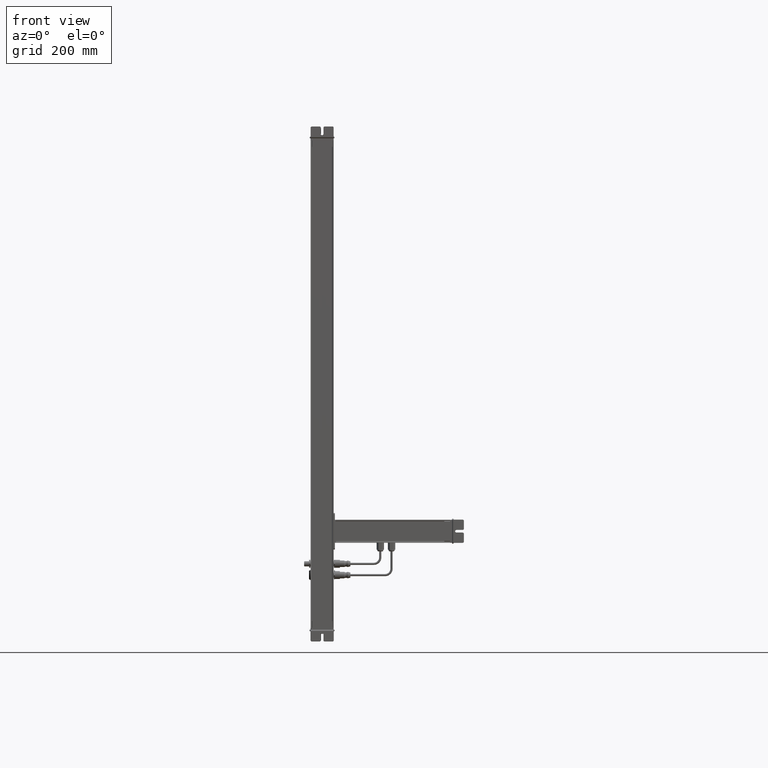
[diagram: clean part render]
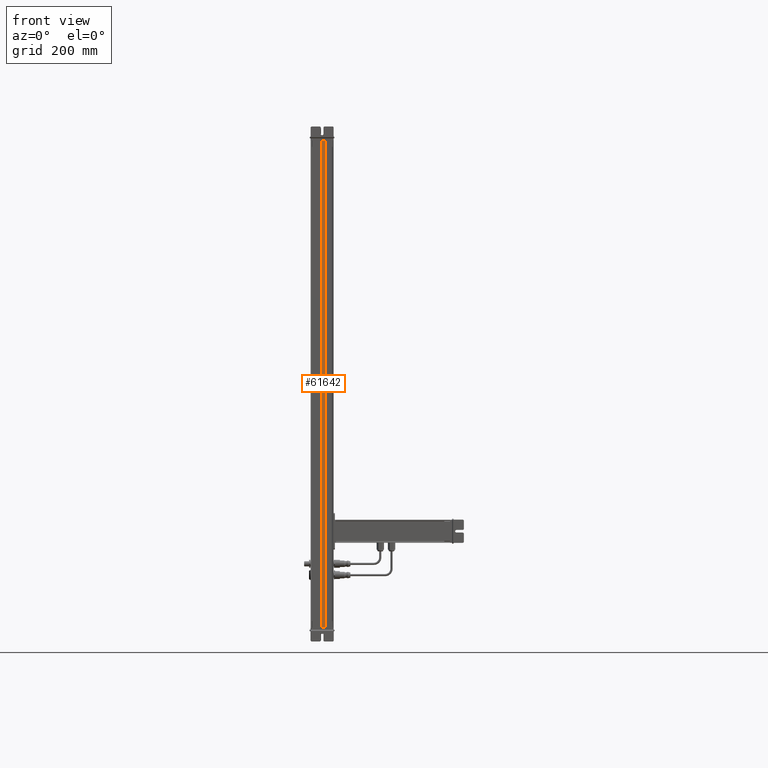
[diagram: same view with one face highlighted and labeled with its STEP entity id]
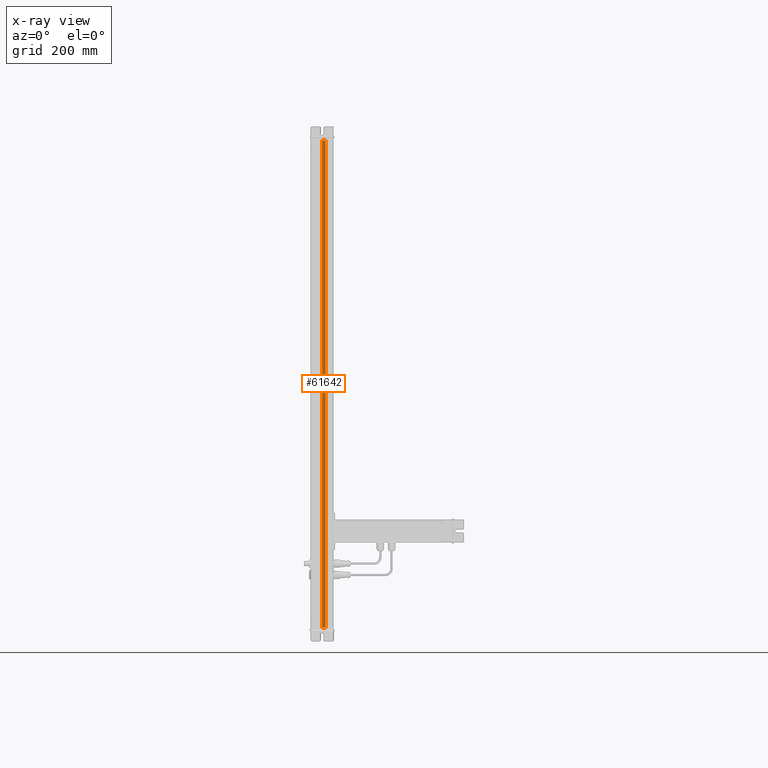
[diagram: x-ray of the same camera — body ghosted, the highlighted face saturated]
A machine part, front view. The second image highlights one B-rep face of the part: STEP entity #61642.
The next image is the same camera in x-ray: the body ghosted, the highlighted face saturated — about 0% of this face is hidden behind the body in this view.
In plain terms, the highlighted planar face has unit normal (-0.0001, -1, 0).
Its self-contained STEP definition (entity closure, byte-faithful):
#61590=CARTESIAN_POINT('Vertex',(639.695716303,120.261611208,0.)) ;
#61593=CARTESIAN_POINT('Line Origine',(639.695716303,120.261611208,561.)) ;
#61597=CARTESIAN_POINT('Vertex',(639.695716303,120.261611208,1122.)) ;
#61612=CARTESIAN_POINT('Axis2P3D Location',(639.695716303,120.261611208,0.)) ;
#61617=CARTESIAN_POINT('Line Origine',(643.683907597,120.261195664,0.)) ;
#61621=CARTESIAN_POINT('Vertex',(647.67209889,120.26078012,0.)) ;
#61624=CARTESIAN_POINT('Line Origine',(647.67209889,120.26078012,561.)) ;
#61628=CARTESIAN_POINT('Vertex',(647.67209889,120.26078012,1122.)) ;
#61631=CARTESIAN_POINT('Line Origine',(643.683907597,120.261195664,1122.)) ;
#61594=DIRECTION('Vector Direction',(0.,0.,1.)) ;
#61613=DIRECTION('Axis2P3D Direction',(-0.000104193603756,-0.999999994572,0.)) ;
#61614=DIRECTION('Axis2P3D XDirection',(0.999999994572,-0.000104193603756,0.)) ;
#61618=DIRECTION('Vector Direction',(0.999999994572,-0.000104193603756,0.)) ;
#61625=DIRECTION('Vector Direction',(0.,0.,1.)) ;
#61632=DIRECTION('Vector Direction',(0.999999994572,-0.000104193603756,0.)) ;
#61615=AXIS2_PLACEMENT_3D('Plane Axis2P3D',#61612,#61613,#61614) ;
#61637=ORIENTED_EDGE('',*,*,#61599,.F.) ;
#61638=ORIENTED_EDGE('',*,*,#61623,.T.) ;
#61639=ORIENTED_EDGE('',*,*,#61630,.T.) ;
#61640=ORIENTED_EDGE('',*,*,#61635,.F.) ;
#61595=VECTOR('Line Direction',#61594,1.) ;
#61619=VECTOR('Line Direction',#61618,1.) ;
#61626=VECTOR('Line Direction',#61625,1.) ;
#61633=VECTOR('Line Direction',#61632,1.) ;
#61642=ADVANCED_FACE('Body.2',(#61641),#61616,.T.) ;
#61599=EDGE_CURVE('',#61591,#61598,#61596,.T.) ;
#61623=EDGE_CURVE('',#61591,#61622,#61620,.T.) ;
#61630=EDGE_CURVE('',#61622,#61629,#61627,.T.) ;
#61635=EDGE_CURVE('',#61598,#61629,#61634,.T.) ;
#61636=EDGE_LOOP('',(#61637,#61638,#61639,#61640)) ;
#61641=FACE_OUTER_BOUND('',#61636,.T.) ;
#61596=LINE('Line',#61593,#61595) ;
#61620=LINE('Line',#61617,#61619) ;
#61627=LINE('Line',#61624,#61626) ;
#61634=LINE('Line',#61631,#61633) ;
#61616=PLANE('Plane',#61615) ;
#61591=VERTEX_POINT('',#61590) ;
#61598=VERTEX_POINT('',#61597) ;
#61622=VERTEX_POINT('',#61621) ;
#61629=VERTEX_POINT('',#61628) ;